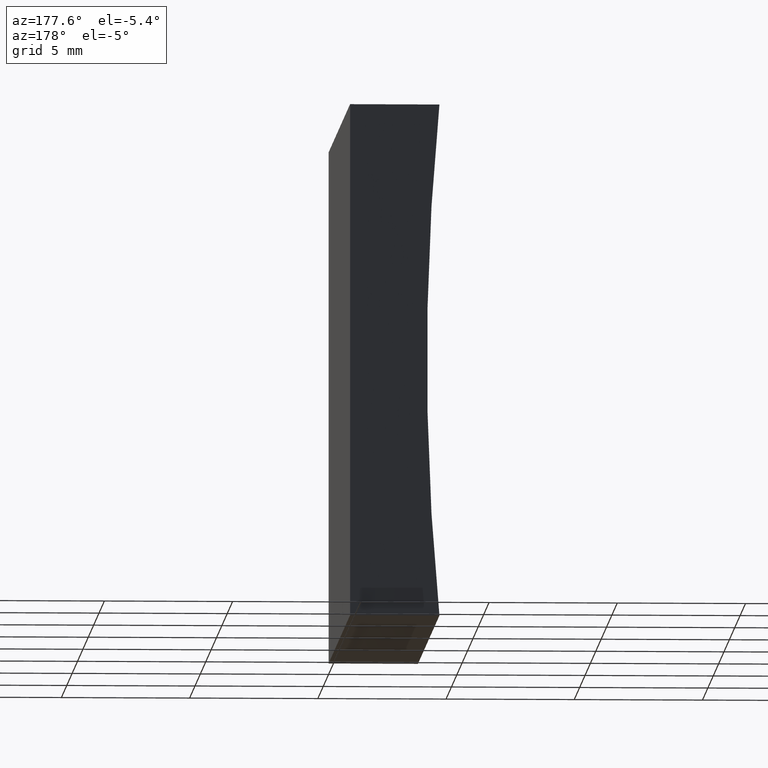
[diagram: clean part render]
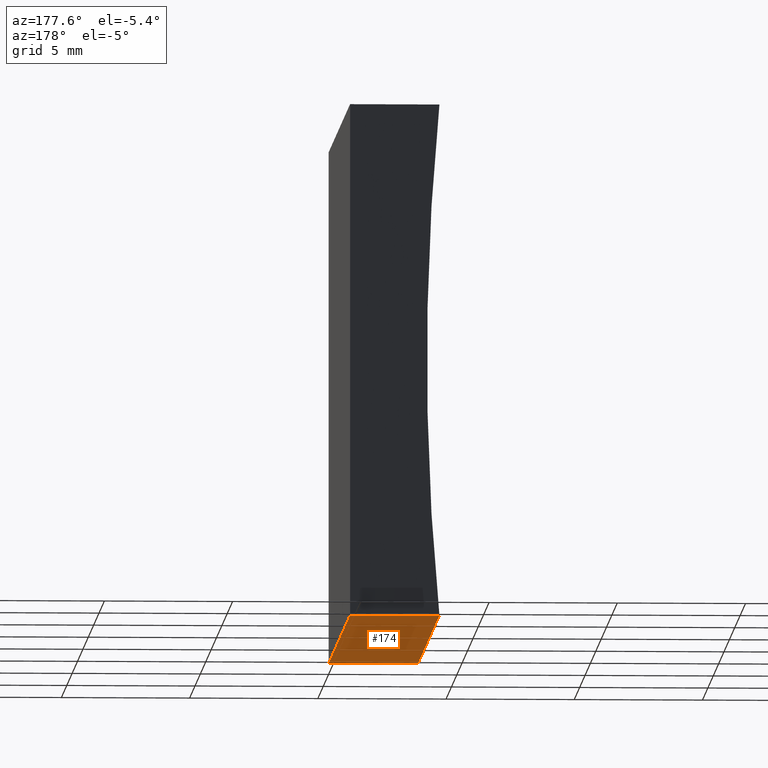
[diagram: same view with one face highlighted and labeled with its STEP entity id]
A machine part, auxiliary view. The second image highlights one B-rep face of the part: STEP entity #174.
In plain terms, the highlighted planar face has unit normal (0, -0, 1).
Its self-contained STEP definition (entity closure, byte-faithful):
#3 = EDGE_CURVE ( 'NONE', #157, #27, #21, .T. ) ;
#6 = LINE ( 'NONE', #105, #165 ) ;
#7 = ORIENTED_EDGE ( 'NONE', *, *, #86, .T. ) ;
#18 = ORIENTED_EDGE ( 'NONE', *, *, #69, .F. ) ;
#19 = AXIS2_PLACEMENT_3D ( 'NONE', #74, #111, #171 ) ;
#21 = LINE ( 'NONE', #136, #40 ) ;
#24 = VERTEX_POINT ( 'NONE', #56 ) ;
#27 = VERTEX_POINT ( 'NONE', #163 ) ;
#37 = VECTOR ( 'NONE', #88, 1000.000000000000000 ) ;
#38 = CARTESIAN_POINT ( 'NONE',  ( 0.0000000000000000000, 0.0000000000000000000, 0.0000000000000000000 ) ) ;
#40 = VECTOR ( 'NONE', #93, 1000.000000000000000 ) ;
#44 = VECTOR ( 'NONE', #78, 1000.000000000000000 ) ;
#47 = DIRECTION ( 'NONE',  ( -0.0000000000000000000, -1.000000000000000000, -0.0000000000000000000 ) ) ;
#51 = EDGE_LOOP ( 'NONE', ( #151, #118, #18, #7 ) ) ;
#56 = CARTESIAN_POINT ( 'NONE',  ( 0.0000000000000000000, 20.00000000000000000, 0.0000000000000000000 ) ) ;
#63 = FACE_OUTER_BOUND ( 'NONE', #51, .T. ) ;
#69 = EDGE_CURVE ( 'NONE', #24, #157, #149, .T. ) ;
#74 = CARTESIAN_POINT ( 'NONE',  ( 0.0000000000000000000, 20.00000000000000000, 0.0000000000000000000 ) ) ;
#78 = DIRECTION ( 'NONE',  ( -1.000000000000000000, 0.0000000000000000000, 9.956242759457456300E-016 ) ) ;
#84 = CARTESIAN_POINT ( 'NONE',  ( 0.0000000000000000000, 0.0000000000000000000, 0.0000000000000000000 ) ) ;
#86 = EDGE_CURVE ( 'NONE', #24, #96, #6, .T. ) ;
#87 = LINE ( 'NONE', #38, #44 ) ;
#88 = DIRECTION ( 'NONE',  ( -1.000000000000000000, 0.0000000000000000000, 9.956242759457456300E-016 ) ) ;
#92 = CARTESIAN_POINT ( 'NONE',  ( 0.0000000000000000000, 20.00000000000000000, 0.0000000000000000000 ) ) ;
#93 = DIRECTION ( 'NONE',  ( -0.0000000000000000000, -1.000000000000000000, -0.0000000000000000000 ) ) ;
#95 = EDGE_CURVE ( 'NONE', #96, #27, #87, .T. ) ;
#96 = VERTEX_POINT ( 'NONE', #84 ) ;
#105 = CARTESIAN_POINT ( 'NONE',  ( 0.0000000000000000000, 20.00000000000000000, 0.0000000000000000000 ) ) ;
#111 = DIRECTION ( 'NONE',  ( 9.956242759457456300E-016, -0.0000000000000000000, 1.000000000000000000 ) ) ;
#118 = ORIENTED_EDGE ( 'NONE', *, *, #3, .F. ) ;
#136 = CARTESIAN_POINT ( 'NONE',  ( -3.484695015755795200, 20.00000000000000000, 1.040834085586084300E-014 ) ) ;
#149 = LINE ( 'NONE', #92, #37 ) ;
#151 = ORIENTED_EDGE ( 'NONE', *, *, #95, .T. ) ;
#157 = VERTEX_POINT ( 'NONE', #179 ) ;
#163 = CARTESIAN_POINT ( 'NONE',  ( -3.484695015755795200, 0.0000000000000000000, 1.040834085586084300E-014 ) ) ;
#165 = VECTOR ( 'NONE', #47, 1000.000000000000000 ) ;
#171 = DIRECTION ( 'NONE',  ( 1.000000000000000000, 0.0000000000000000000, -9.956242759457456300E-016 ) ) ;
#174 = ADVANCED_FACE ( 'NONE', ( #63 ), #192, .F. ) ;
#179 = CARTESIAN_POINT ( 'NONE',  ( -3.484695015755795200, 20.00000000000000000, 1.040834085586084300E-014 ) ) ;
#192 = PLANE ( 'NONE',  #19 ) ;